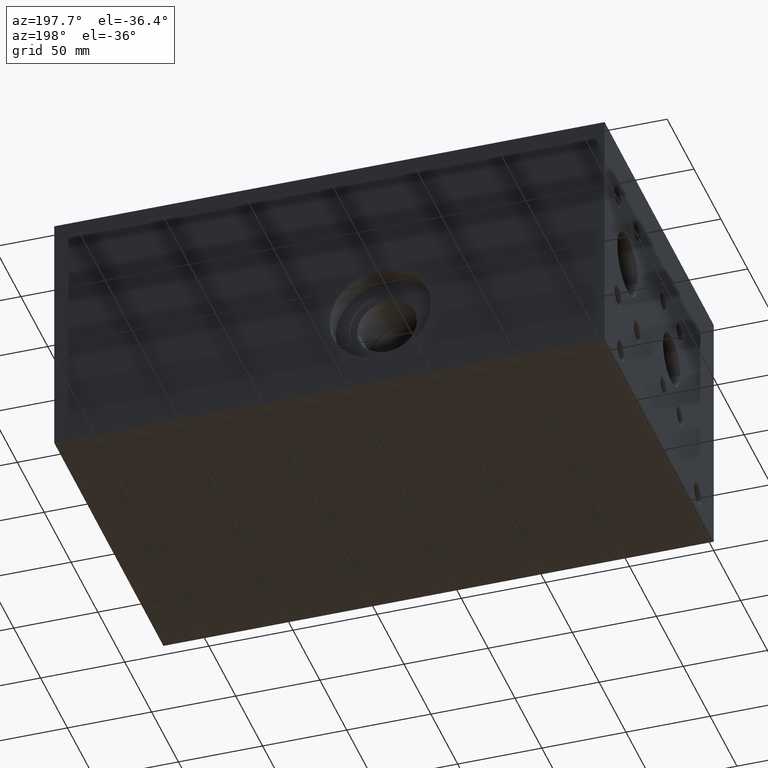
[diagram: clean part render]
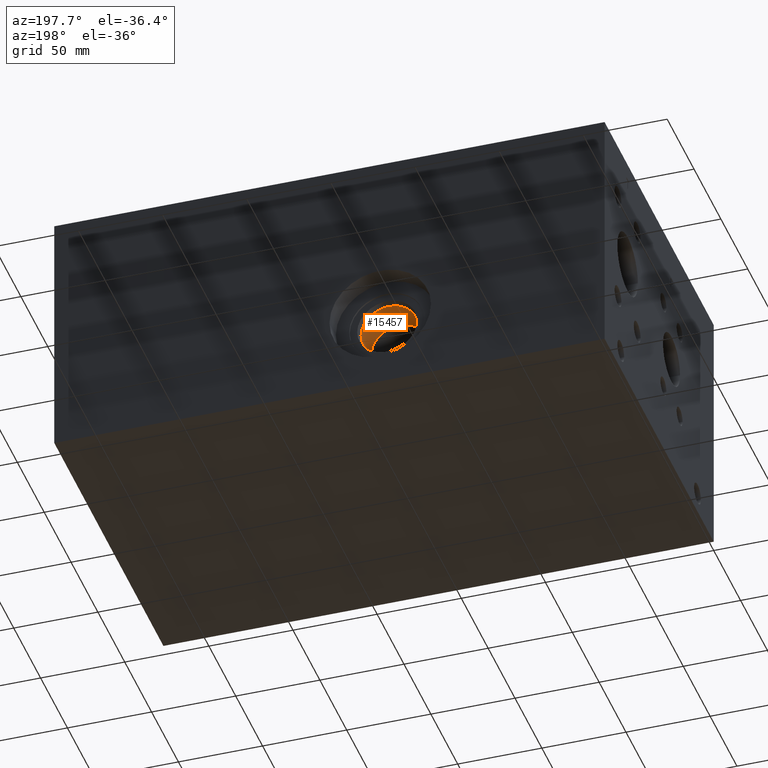
[diagram: same view with one face highlighted and labeled with its STEP entity id]
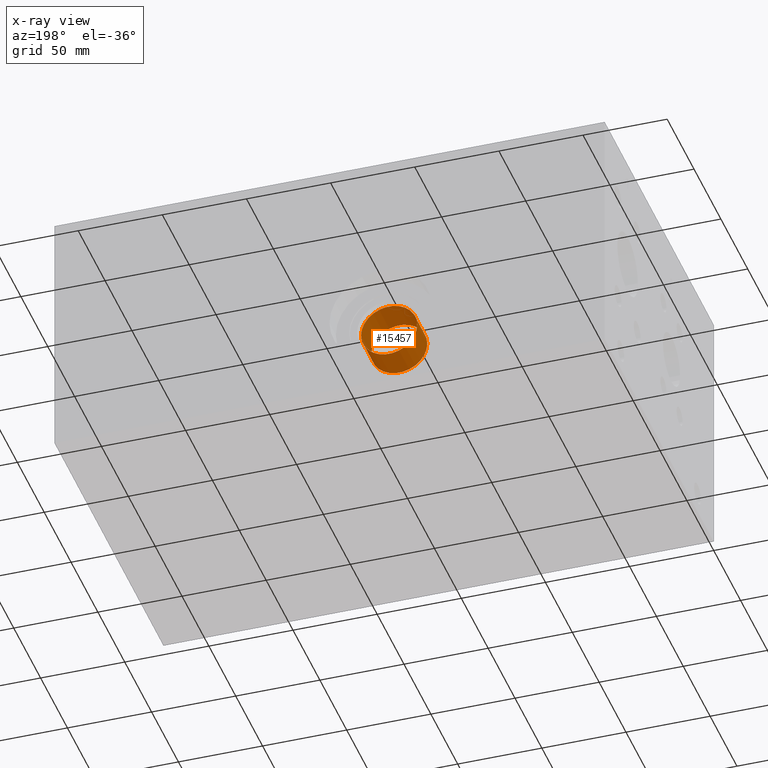
[diagram: x-ray of the same camera — body ghosted, the highlighted face saturated]
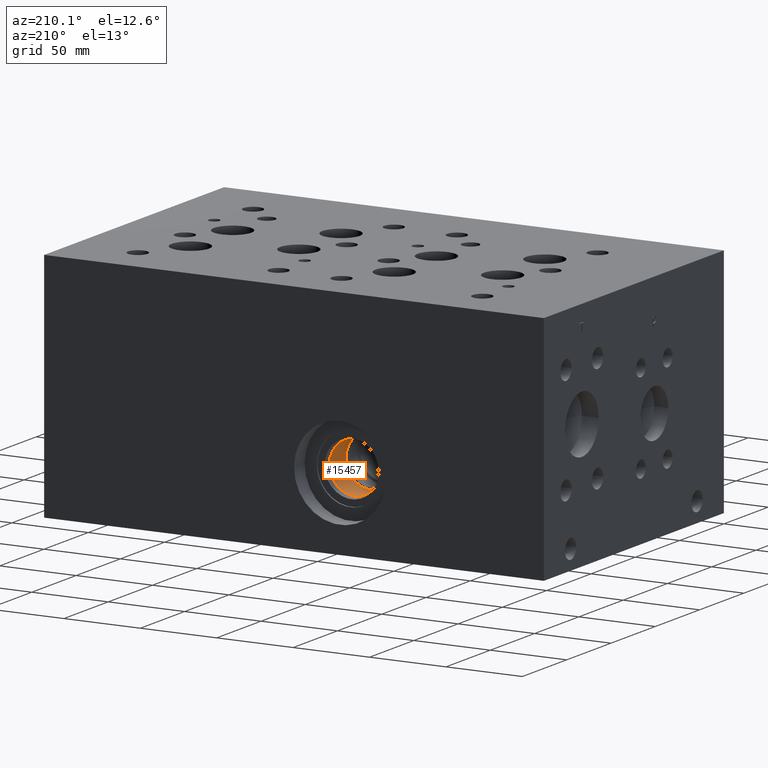
[diagram: same view with one face highlighted and labeled with its STEP entity id]
A machine part, auxiliary view. The second image highlights one B-rep face of the part: STEP entity #15457.
The next image is the same camera in x-ray: the body ghosted, the highlighted face saturated — about 0% of this face is hidden behind the body in this view.
A second angle (auxiliary view) of the same face is appended — the face is thin or edge-on in the first view.
In plain terms, the highlighted cylindrical surface (bore or boss wall) has radius 16.67 mm, axis along (0, -1, 0).
Its self-contained STEP definition (entity closure, byte-faithful):
#104=CYLINDRICAL_SURFACE('',#16232,16.67);
#349=CIRCLE('',#16230,16.67);
#350=CIRCLE('',#16231,16.67);
#351=CIRCLE('',#16233,16.67);
#352=CIRCLE('',#16234,16.67);
#1966=FACE_OUTER_BOUND('',#2882,.T.);
#2882=EDGE_LOOP('',(#12610,#12611,#12612,#12613,#12614,#12615));
#4359=LINE('',#25875,#5693);
#5693=VECTOR('',#18986,16.67);
#6983=VERTEX_POINT('',#25868);
#6984=VERTEX_POINT('',#25870);
#6985=VERTEX_POINT('',#25874);
#6986=VERTEX_POINT('',#25876);
#9008=EDGE_CURVE('',#6983,#6984,#349,.T.);
#9009=EDGE_CURVE('',#6984,#6983,#350,.T.);
#9010=EDGE_CURVE('',#6983,#6985,#4359,.T.);
#9011=EDGE_CURVE('',#6985,#6986,#351,.T.);
#9012=EDGE_CURVE('',#6986,#6985,#352,.T.);
#12610=ORIENTED_EDGE('',*,*,#9009,.F.);
#12611=ORIENTED_EDGE('',*,*,#9008,.F.);
#12612=ORIENTED_EDGE('',*,*,#9010,.T.);
#12613=ORIENTED_EDGE('',*,*,#9011,.T.);
#12614=ORIENTED_EDGE('',*,*,#9012,.T.);
#12615=ORIENTED_EDGE('',*,*,#9010,.F.);
#15457=ADVANCED_FACE('',(#1966),#104,.F.);
#16230=AXIS2_PLACEMENT_3D('',#25871,#18980,#18981);
#16231=AXIS2_PLACEMENT_3D('',#25872,#18982,#18983);
#16232=AXIS2_PLACEMENT_3D('',#25873,#18984,#18985);
#16233=AXIS2_PLACEMENT_3D('',#25877,#18987,#18988);
#16234=AXIS2_PLACEMENT_3D('',#25878,#18989,#18990);
#18980=DIRECTION('center_axis',(0.,-1.,0.));
#18981=DIRECTION('ref_axis',(1.,0.,0.));
#18982=DIRECTION('center_axis',(0.,-1.,0.));
#18983=DIRECTION('ref_axis',(1.,0.,0.));
#18984=DIRECTION('center_axis',(0.,-1.,0.));
#18985=DIRECTION('ref_axis',(1.,0.,0.));
#18986=DIRECTION('',(0.,-1.,0.));
#18987=DIRECTION('center_axis',(0.,-1.,0.));
#18988=DIRECTION('ref_axis',(1.,0.,0.));
#18989=DIRECTION('center_axis',(0.,-1.,0.));
#18990=DIRECTION('ref_axis',(1.,0.,0.));
#25868=CARTESIAN_POINT('',(116.68,186.571,47.625));
#25870=CARTESIAN_POINT('',(150.02,186.571,47.625));
#25871=CARTESIAN_POINT('Origin',(133.35,186.571,47.625));
#25872=CARTESIAN_POINT('Origin',(133.35,186.571,47.625));
#25873=CARTESIAN_POINT('Origin',(133.35,177.1182,47.625));
#25874=CARTESIAN_POINT('',(116.68,167.6654,47.625));
#25875=CARTESIAN_POINT('',(116.68,177.1182,47.625));
#25876=CARTESIAN_POINT('',(150.02,167.6654,47.625));
#25877=CARTESIAN_POINT('Origin',(133.35,167.6654,47.625));
#25878=CARTESIAN_POINT('Origin',(133.35,167.6654,47.625));